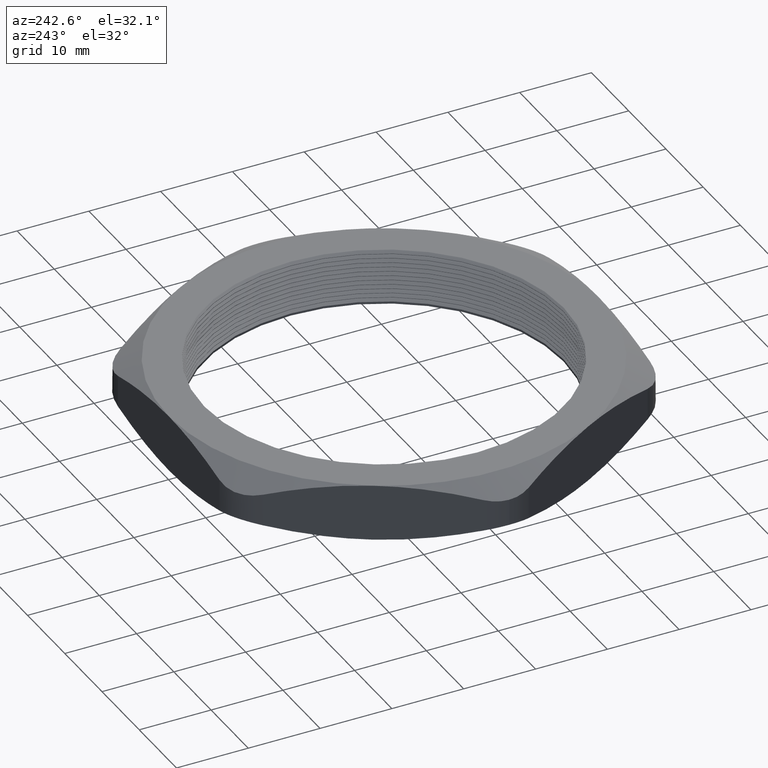
[diagram: clean part render]
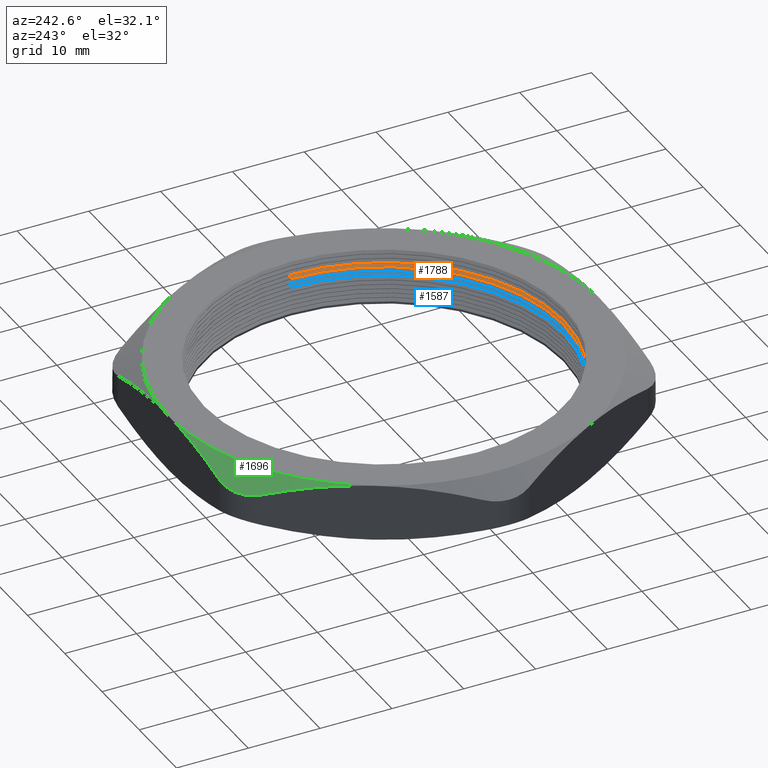
[diagram: same view with three faces highlighted in distinct colors, each labeled with its STEP entity id]
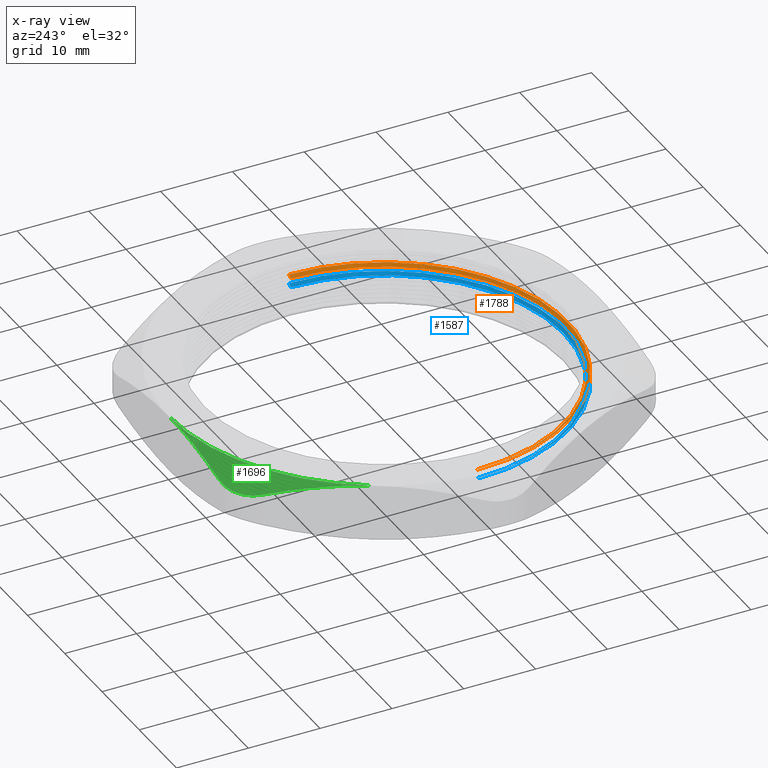
[diagram: x-ray of the same camera — body ghosted, the three highlighted faces saturated]
A machine part, auxiliary view with three faces highlighted in distinct colors.
The next image is the same camera in x-ray (body ghosted, the three faces saturated) — at least one of them is partly hidden behind the body in this view.
Their STEP definitions:

[orange] entity #1788 — the highlighted conical surface has half-angle 60 deg.
#428 = DIRECTION ( 'NONE',  ( 1.000000000000000000, 0.0000000000000000000, 0.0000000000000000000 ) ) ;
#429 = DIRECTION ( 'NONE',  ( 0.0000000000000000000, 0.0000000000000000000, 1.000000000000000000 ) ) ;
#430 = CARTESIAN_POINT ( 'NONE',  ( 0.0000000000000000000, 0.0000000000000000000, 0.2119059892324149900 ) ) ;
#431 = AXIS2_PLACEMENT_3D ( 'NONE', #430, #429, #428 ) ;
#432 = CIRCLE ( 'NONE', #431, 0.9849999999999999900 ) ;
#434 = DIRECTION ( 'NONE',  ( 1.000000000000000000, 0.0000000000000000000, 0.0000000000000000000 ) ) ;
#435 = DIRECTION ( 'NONE',  ( 0.0000000000000000000, 0.0000000000000000000, 1.000000000000000000 ) ) ;
#436 = CARTESIAN_POINT ( 'NONE',  ( 0.0000000000000000000, 0.0000000000000000000, 0.2119059892324149900 ) ) ;
#437 = AXIS2_PLACEMENT_3D ( 'NONE', #436, #435, #434 ) ;
#438 = CONICAL_SURFACE ( 'NONE', #437, 0.9849999999999999900, 1.047197551196591200 ) ;
#439 = FACE_OUTER_BOUND ( 'NONE', #1707, .T. ) ;
#1554 = VERTEX_POINT ( 'NONE', #2863 ) ;
#1555 = VERTEX_POINT ( 'NONE', #2862 ) ;
#1556 = ORIENTED_EDGE ( 'NONE', *, *, #1557, .T. ) ;
#1557 = EDGE_CURVE ( 'NONE', #1554, #1558, #2861, .T. ) ;
#1558 = VERTEX_POINT ( 'NONE', #2925 ) ;
#1561 = ORIENTED_EDGE ( 'NONE', *, *, #1562, .T. ) ;
#1562 = EDGE_CURVE ( 'NONE', #1558, #1564, #2923, .T. ) ;
#1564 = VERTEX_POINT ( 'NONE', #2904 ) ;
#1566 = ORIENTED_EDGE ( 'NONE', *, *, #1568, .F. ) ;
#1568 = EDGE_CURVE ( 'NONE', #1555, #1564, #2897, .T. ) ;
#1707 = EDGE_LOOP ( 'NONE', ( #1791, #1556, #1561, #1566 ) ) ;
#1788 = ADVANCED_FACE ( 'NONE', ( #439 ), #438, .F. ) ;
#1790 = EDGE_CURVE ( 'NONE', #1554, #1555, #432, .T. ) ;
#1791 = ORIENTED_EDGE ( 'NONE', *, *, #1790, .F. ) ;
#2195 = VECTOR ( 'NONE', #2200, 39.37007874015748100 ) ;
#2196 = CARTESIAN_POINT ( 'NONE',  ( 0.9849999999999999900, 0.0000000000000000000, 0.2119059892324149900 ) ) ;
#2200 = DIRECTION ( 'NONE',  ( 0.8660254037844353800, 0.0000000000000000000, 0.5000000000000056600 ) ) ;
#2860 = CARTESIAN_POINT ( 'NONE',  ( -0.9849999999999999900, 1.206277097160143100E-016, 0.2119059892324149900 ) ) ;
#2861 = LINE ( 'NONE', #2860, #2927 ) ;
#2862 = CARTESIAN_POINT ( 'NONE',  ( 0.9849999999999999900, 1.206277097160143100E-016, 0.2119059892324149900 ) ) ;
#2863 = CARTESIAN_POINT ( 'NONE',  ( -0.9849999999999999900, 0.0000000000000000000, 0.2119059892324149900 ) ) ;
#2897 = LINE ( 'NONE', #2196, #2195 ) ;
#2904 = CARTESIAN_POINT ( 'NONE',  ( 1.005000000000000100, 1.230770033143090100E-016, 0.2234529946162077100 ) ) ;
#2905 = DIRECTION ( 'NONE',  ( 1.000000000000000000, 0.0000000000000000000, 0.0000000000000000000 ) ) ;
#2920 = DIRECTION ( 'NONE',  ( 0.0000000000000000000, 0.0000000000000000000, 1.000000000000000000 ) ) ;
#2921 = CARTESIAN_POINT ( 'NONE',  ( 0.0000000000000000000, 0.0000000000000000000, 0.2234529946162077100 ) ) ;
#2922 = AXIS2_PLACEMENT_3D ( 'NONE', #2921, #2920, #2905 ) ;
#2923 = CIRCLE ( 'NONE', #2922, 1.005000000000000100 ) ;
#2925 = CARTESIAN_POINT ( 'NONE',  ( -1.005000000000000100, 0.0000000000000000000, 0.2234529946162077100 ) ) ;
#2926 = DIRECTION ( 'NONE',  ( -0.8660254037844353800, 1.060575238724902800E-016, 0.5000000000000056600 ) ) ;
#2927 = VECTOR ( 'NONE', #2926, 39.37007874015748100 ) ;

[blue] entity #1587 — the highlighted conical surface has half-angle 60 deg.
#17 = DIRECTION ( 'NONE',  ( 1.000000000000000000, 0.0000000000000000000, 0.0000000000000000000 ) ) ;
#18 = DIRECTION ( 'NONE',  ( 0.0000000000000000000, 0.0000000000000000000, 1.000000000000000000 ) ) ;
#19 = CARTESIAN_POINT ( 'NONE',  ( 0.0000000000000000000, 0.0000000000000000000, 0.1619059892324149800 ) ) ;
#20 = AXIS2_PLACEMENT_3D ( 'NONE', #19, #18, #17 ) ;
#21 = CONICAL_SURFACE ( 'NONE', #20, 0.9849999999999999900, 1.047197551196591200 ) ;
#22 = FACE_OUTER_BOUND ( 'NONE', #1588, .T. ) ;
#107 = CARTESIAN_POINT ( 'NONE',  ( 0.9849999999999999900, 1.206277097160143100E-016, 0.1619059892324149800 ) ) ;
#108 = CARTESIAN_POINT ( 'NONE',  ( -0.9849999999999999900, 0.0000000000000000000, 0.1619059892324149800 ) ) ;
#109 = DIRECTION ( 'NONE',  ( 1.000000000000000000, 0.0000000000000000000, 0.0000000000000000000 ) ) ;
#110 = DIRECTION ( 'NONE',  ( 0.0000000000000000000, 0.0000000000000000000, 1.000000000000000000 ) ) ;
#111 = CARTESIAN_POINT ( 'NONE',  ( 0.0000000000000000000, 0.0000000000000000000, 0.1619059892324149800 ) ) ;
#112 = AXIS2_PLACEMENT_3D ( 'NONE', #111, #110, #109 ) ;
#117 = CIRCLE ( 'NONE', #112, 0.9849999999999999900 ) ;
#1543 = EDGE_CURVE ( 'NONE', #1628, #1545, #2878, .T. ) ;
#1545 = VERTEX_POINT ( 'NONE', #2874 ) ;
#1546 = ORIENTED_EDGE ( 'NONE', *, *, #1547, .T. ) ;
#1547 = EDGE_CURVE ( 'NONE', #1545, #1548, #2873, .T. ) ;
#1548 = VERTEX_POINT ( 'NONE', #2868 ) ;
#1549 = ORIENTED_EDGE ( 'NONE', *, *, #1551, .F. ) ;
#1551 = EDGE_CURVE ( 'NONE', #1629, #1548, #2867, .T. ) ;
#1587 = ADVANCED_FACE ( 'NONE', ( #22 ), #21, .F. ) ;
#1588 = EDGE_LOOP ( 'NONE', ( #1626, #1630, #1546, #1549 ) ) ;
#1626 = ORIENTED_EDGE ( 'NONE', *, *, #1627, .F. ) ;
#1627 = EDGE_CURVE ( 'NONE', #1628, #1629, #117, .T. ) ;
#1628 = VERTEX_POINT ( 'NONE', #108 ) ;
#1629 = VERTEX_POINT ( 'NONE', #107 ) ;
#1630 = ORIENTED_EDGE ( 'NONE', *, *, #1543, .T. ) ;
#2864 = DIRECTION ( 'NONE',  ( 0.8660254037844353800, 0.0000000000000000000, 0.5000000000000056600 ) ) ;
#2865 = VECTOR ( 'NONE', #2864, 39.37007874015748100 ) ;
#2866 = CARTESIAN_POINT ( 'NONE',  ( 0.9849999999999999900, 0.0000000000000000000, 0.1619059892324149800 ) ) ;
#2867 = LINE ( 'NONE', #2866, #2865 ) ;
#2868 = CARTESIAN_POINT ( 'NONE',  ( 1.005000000000000100, 1.230770033143090100E-016, 0.1734529946162077000 ) ) ;
#2869 = DIRECTION ( 'NONE',  ( 1.000000000000000000, 0.0000000000000000000, 0.0000000000000000000 ) ) ;
#2870 = DIRECTION ( 'NONE',  ( 0.0000000000000000000, 0.0000000000000000000, 1.000000000000000000 ) ) ;
#2871 = CARTESIAN_POINT ( 'NONE',  ( 0.0000000000000000000, 0.0000000000000000000, 0.1734529946162077000 ) ) ;
#2872 = AXIS2_PLACEMENT_3D ( 'NONE', #2871, #2870, #2869 ) ;
#2873 = CIRCLE ( 'NONE', #2872, 1.005000000000000100 ) ;
#2874 = CARTESIAN_POINT ( 'NONE',  ( -1.005000000000000100, 0.0000000000000000000, 0.1734529946162077000 ) ) ;
#2875 = DIRECTION ( 'NONE',  ( -0.8660254037844353800, 1.060575238724902800E-016, 0.5000000000000056600 ) ) ;
#2876 = VECTOR ( 'NONE', #2875, 39.37007874015748100 ) ;
#2877 = CARTESIAN_POINT ( 'NONE',  ( -0.9849999999999999900, 1.206277097160143100E-016, 0.1619059892324149800 ) ) ;
#2878 = LINE ( 'NONE', #2877, #2876 ) ;

[green] entity #1696 — the highlighted conical surface has half-angle 60 deg.
#36 = CARTESIAN_POINT ( 'NONE',  ( -0.7426406280276897100, 1.073708700491182700, 0.2376202493319567200 ) ) ;
#37 = CARTESIAN_POINT ( 'NONE',  ( -0.7292618027920839700, 1.091195033875054200, 0.2336283984944736200 ) ) ;
#38 = CARTESIAN_POINT ( 'NONE',  ( -0.7062144216875241300, 1.114290582444687100, 0.2296370671020663000 ) ) ;
#39 = CARTESIAN_POINT ( 'NONE',  ( -0.6980114634144938300, 1.121510473299437400, 0.2286275982255480400 ) ) ;
#40 = CARTESIAN_POINT ( 'NONE',  ( -0.6805205885013930800, 1.134951313671749100, 0.2272701564282439400 ) ) ;
#41 = CARTESIAN_POINT ( 'NONE',  ( -0.6712656668977307100, 1.141129690300331400, 0.2269317070438221000 ) ) ;
#42 = CARTESIAN_POINT ( 'NONE',  ( -0.6522617552205251000, 1.152081483259583200, 0.2269398675414509000 ) ) ;
#43 = CARTESIAN_POINT ( 'NONE',  ( -0.6424447765496056300, 1.156909620522817500, 0.2272802097087083500 ) ) ;
#44 = CARTESIAN_POINT ( 'NONE',  ( -0.6221819559806108800, 1.165272639550648500, 0.2286349243502648300 ) ) ;
#45 = CARTESIAN_POINT ( 'NONE',  ( -0.6116474606707502600, 1.168826090778309500, 0.2296625828566580800 ) ) ;
#46 = CARTESIAN_POINT ( 'NONE',  ( -0.5799181923317208200, 1.177247800526430600, 0.2336981853431921700 ) ) ;
#47 = CARTESIAN_POINT ( 'NONE',  ( -0.5585335758802318900, 1.179999999999999900, 0.2376214738663904000 ) ) ;
#48 = CARTESIAN_POINT ( 'NONE',  ( -0.5369357503463517700, 1.180000000000000200, 0.2427859541343050100 ) ) ;
#54 = B_SPLINE_CURVE_WITH_KNOTS ( 'NONE', 3,
 ( #48, #47, #46, #45, #44, #43, #42, #41, #40, #39, #38, #37, #36, #99 ),
 .UNSPECIFIED., .F., .F.,
 ( 4, 2, 2, 2, 2, 2, 4 ),
 ( 1.734723475976807100E-018, 0.001669271586080331800, 0.002503907379120496800, 0.003338543172160661800, 0.004173178965200826900, 0.005007814758240991900, 0.006677086344321321900 ),
 .UNSPECIFIED. ) ;
#99 = CARTESIAN_POINT ( 'NONE',  ( -0.7534421012924613600, 1.055000000000000200, 0.2427859541343050700 ) ) ;
#120 = DIRECTION ( 'NONE',  ( 1.000000000000000000, 0.0000000000000000000, 0.0000000000000000000 ) ) ;
#121 = DIRECTION ( 'NONE',  ( 0.0000000000000000000, 0.0000000000000000000, 1.000000000000000000 ) ) ;
#122 = CARTESIAN_POINT ( 'NONE',  ( 0.0000000000000000000, 0.0000000000000000000, 0.3100000000000000000 ) ) ;
#123 = AXIS2_PLACEMENT_3D ( 'NONE', #122, #121, #120 ) ;
#124 = CIRCLE ( 'NONE', #123, 1.180000000000000200 ) ;
#227 = DIRECTION ( 'NONE',  ( 1.000000000000000000, 0.0000000000000000000, 0.0000000000000000000 ) ) ;
#228 = DIRECTION ( 'NONE',  ( 0.0000000000000000000, 0.0000000000000000000, -1.000000000000000000 ) ) ;
#229 = AXIS2_PLACEMENT_3D ( 'NONE', #238, #228, #227 ) ;
#231 = CONICAL_SURFACE ( 'NONE', #229, 1.180000000000000200, 1.047197551196600100 ) ;
#232 = FACE_OUTER_BOUND ( 'NONE', #1634, .T. ) ;
#238 = CARTESIAN_POINT ( 'NONE',  ( 0.0000000000000000000, 0.0000000000000000000, 0.3100000000000000000 ) ) ;
#1206 = VERTEX_POINT ( 'NONE', #2253 ) ;
#1208 = EDGE_CURVE ( 'NONE', #1209, #1206, #2243, .T. ) ;
#1209 = VERTEX_POINT ( 'NONE', #2242 ) ;
#1292 = EDGE_CURVE ( 'NONE', #1350, #1311, #2441, .T. ) ;
#1311 = VERTEX_POINT ( 'NONE', #2489 ) ;
#1350 = VERTEX_POINT ( 'NONE', #2536 ) ;
#1597 = ORIENTED_EDGE ( 'NONE', *, *, #1208, .T. ) ;
#1602 = EDGE_CURVE ( 'NONE', #1311, #1209, #54, .T. ) ;
#1624 = EDGE_CURVE ( 'NONE', #1350, #1206, #124, .T. ) ;
#1634 = EDGE_LOOP ( 'NONE', ( #1666, #1694, #1597, #1647 ) ) ;
#1647 = ORIENTED_EDGE ( 'NONE', *, *, #1624, .F. ) ;
#1666 = ORIENTED_EDGE ( 'NONE', *, *, #1292, .T. ) ;
#1694 = ORIENTED_EDGE ( 'NONE', *, *, #1602, .T. ) ;
#1696 = ADVANCED_FACE ( 'NONE', ( #232 ), #231, .T. ) ;
#2234 = CARTESIAN_POINT ( 'NONE',  ( -1.021909976465637400, 0.5899999999999999700, 0.3100000000000000000 ) ) ;
#2235 = CARTESIAN_POINT ( 'NONE',  ( -0.9763607710639461400, 0.6688935380001203000, 0.3100000000000002200 ) ) ;
#2236 = CARTESIAN_POINT ( 'NONE',  ( -0.9312536539912954500, 0.7470213565529085800, 0.3038445522537131500 ) ) ;
#2237 = CARTESIAN_POINT ( 'NONE',  ( -0.8418140550371714400, 0.9019352861500356000, 0.2807479695387029600 ) ) ;
#2238 = CARTESIAN_POINT ( 'NONE',  ( -0.7974787547506380100, 0.9787262788151341900, 0.2638460768298029900 ) ) ;
#2239 = CARTESIAN_POINT ( 'NONE',  ( -0.7534421012924613600, 1.055000000000000200, 0.2427859541343050700 ) ) ;
#2242 = CARTESIAN_POINT ( 'NONE',  ( -0.7534421012924613600, 1.055000000000000200, 0.2427859541343050700 ) ) ;
#2243 = B_SPLINE_CURVE_WITH_KNOTS ( 'NONE', 3,
 ( #2239, #2238, #2237, #2236, #2235, #2234 ),
 .UNSPECIFIED., .F., .F.,
 ( 4, 2, 4 ),
 ( 0.003767047510153076000, 0.01063822244227695000, 0.01750939737440082600 ),
 .UNSPECIFIED. ) ;
#2253 = CARTESIAN_POINT ( 'NONE',  ( -1.021909976465637400, 0.5899999999999999700, 0.3100000000000000000 ) ) ;
#2421 = CARTESIAN_POINT ( 'NONE',  ( -0.5369357503463517700, 1.180000000000000200, 0.2427859541343050100 ) ) ;
#2422 = CARTESIAN_POINT ( 'NONE',  ( -0.4483414298501919300, 1.180000000000000200, 0.2639706617954516400 ) ) ;
#2423 = CARTESIAN_POINT ( 'NONE',  ( -0.3592866603776250800, 1.179999999999999900, 0.2809023044652066400 ) ) ;
#2424 = CARTESIAN_POINT ( 'NONE',  ( -0.1803601917602107900, 1.180000000000000200, 0.3039296812338860800 ) ) ;
#2425 = CARTESIAN_POINT ( 'NONE',  ( -0.09043671930198092500, 1.179999999999999900, 0.3100000000000000000 ) ) ;
#2426 = CARTESIAN_POINT ( 'NONE',  ( -1.182924880895401300E-016, 1.180000000000000200, 0.3100000000000000000 ) ) ;
#2441 = B_SPLINE_CURVE_WITH_KNOTS ( 'NONE', 3,
 ( #2426, #2425, #2424, #2423, #2422, #2421 ),
 .UNSPECIFIED., .F., .F.,
 ( 4, 2, 4 ),
 ( 0.09629130399386140500, 0.1031685698336616600, 0.1100458356734618900 ),
 .UNSPECIFIED. ) ;
#2489 = CARTESIAN_POINT ( 'NONE',  ( -0.5369357503463517700, 1.180000000000000200, 0.2427859541343050100 ) ) ;
#2536 = CARTESIAN_POINT ( 'NONE',  ( -1.182924880895401300E-016, 1.180000000000000200, 0.3100000000000000000 ) ) ;